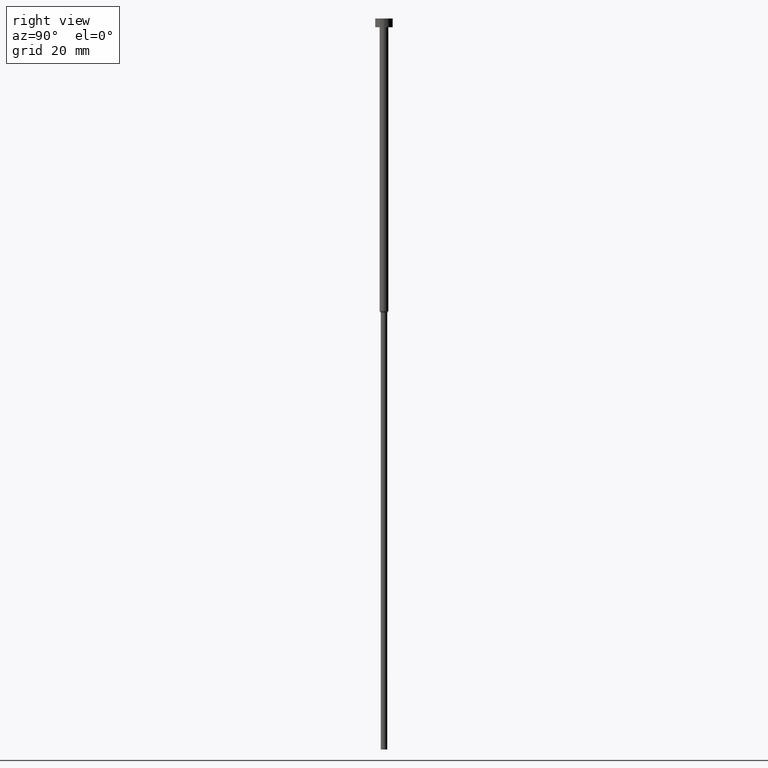
[diagram: clean part render]
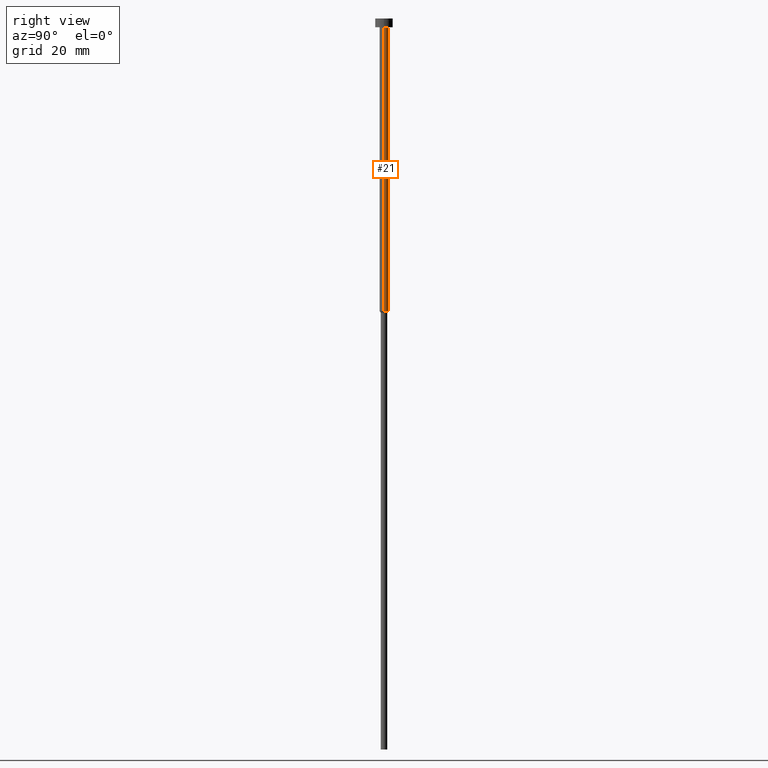
[diagram: same view with one face highlighted and labeled with its STEP entity id]
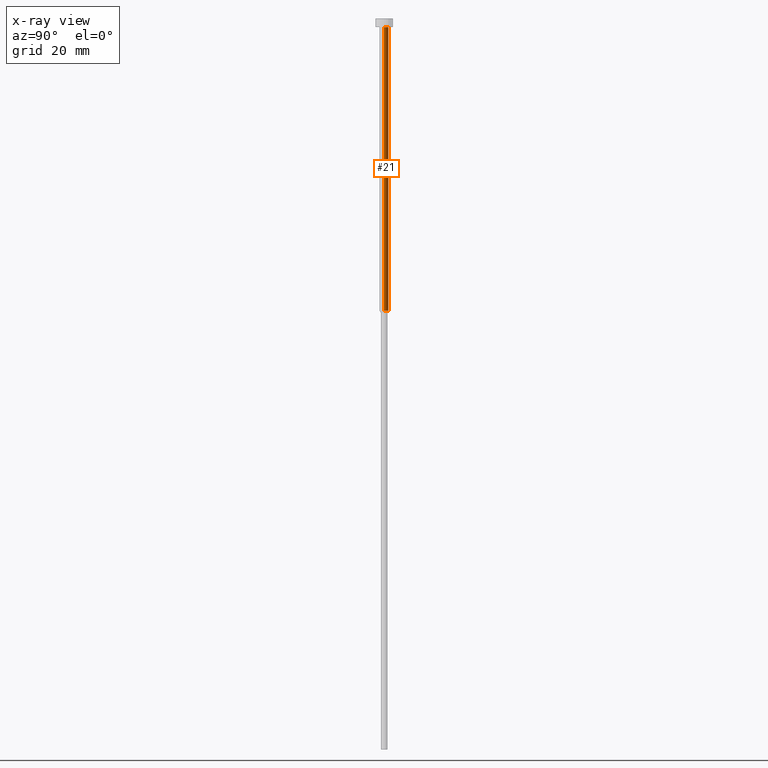
[diagram: x-ray of the same camera — body ghosted, the highlighted face saturated]
A machine part, right view. The second image highlights one B-rep face of the part: STEP entity #21.
The next image is the same camera in x-ray: the body ghosted, the highlighted face saturated — about 0% of this face is hidden behind the body in this view.
In plain terms, the highlighted cylindrical surface (edge-blend (fillet) strip) has radius 1.5 mm, axis along (-0, -0, 1).
Its self-contained STEP definition (entity closure, byte-faithful):
#19 = EDGE_LOOP ( 'NONE', ( #153, #314, #130, #289 ) ) ;
#20 = VERTEX_POINT ( 'NONE', #193 ) ;
#21 = ADVANCED_FACE ( 'NONE', ( #244 ), #101, .T. ) ;
#23 = DIRECTION ( 'NONE',  ( -0.000000000000000000, -0.000000000000000000, 1.000000000000000000 ) ) ;
#27 = DIRECTION ( 'NONE',  ( -0.000000000000000000, -0.000000000000000000, 1.000000000000000000 ) ) ;
#30 = DIRECTION ( 'NONE',  ( 1.000000000000000000, 0.000000000000000000, 0.000000000000000000 ) ) ;
#42 = CARTESIAN_POINT ( 'NONE',  ( -1.500000000000000000, 1.836970198721029934E-16, -3.000000000000000888 ) ) ;
#45 = DIRECTION ( 'NONE',  ( -0.000000000000000000, -0.000000000000000000, 1.000000000000000000 ) ) ;
#58 = VERTEX_POINT ( 'NONE', #75 ) ;
#70 = EDGE_CURVE ( 'NONE', #20, #127, #294, .T. ) ;
#75 = CARTESIAN_POINT ( 'NONE',  ( 1.500000000000000000, 0.000000000000000000, -100.0000000000000000 ) ) ;
#81 = CARTESIAN_POINT ( 'NONE',  ( 1.500000000000000000, 0.000000000000000000, 0.000000000000000000 ) ) ;
#86 = EDGE_CURVE ( 'NONE', #179, #127, #344, .T. ) ;
#88 = AXIS2_PLACEMENT_3D ( 'NONE', #305, #172, #30 ) ;
#101 = CYLINDRICAL_SURFACE ( 'NONE', #310, 1.500000000000000000 ) ;
#127 = VERTEX_POINT ( 'NONE', #42 ) ;
#130 = ORIENTED_EDGE ( 'NONE', *, *, #86, .F. ) ;
#141 = DIRECTION ( 'NONE',  ( -0.000000000000000000, -0.000000000000000000, 1.000000000000000000 ) ) ;
#153 = ORIENTED_EDGE ( 'NONE', *, *, #324, .T. ) ;
#167 = DIRECTION ( 'NONE',  ( 1.000000000000000000, 0.000000000000000000, 0.000000000000000000 ) ) ;
#172 = DIRECTION ( 'NONE',  ( -0.000000000000000000, -0.000000000000000000, 1.000000000000000000 ) ) ;
#179 = VERTEX_POINT ( 'NONE', #338 ) ;
#193 = CARTESIAN_POINT ( 'NONE',  ( -1.500000000000000000, 1.836970198721029934E-16, -100.0000000000000000 ) ) ;
#197 = LINE ( 'NONE', #81, #245 ) ;
#215 = CARTESIAN_POINT ( 'NONE',  ( 0.000000000000000000, 0.000000000000000000, 0.000000000000000000 ) ) ;
#216 = CARTESIAN_POINT ( 'NONE',  ( 0.000000000000000000, 0.000000000000000000, -3.000000000000000888 ) ) ;
#236 = EDGE_CURVE ( 'NONE', #58, #179, #197, .T. ) ;
#241 = AXIS2_PLACEMENT_3D ( 'NONE', #216, #27, #167 ) ;
#244 = FACE_OUTER_BOUND ( 'NONE', #19, .T. ) ;
#245 = VECTOR ( 'NONE', #141, 1000.000000000000000 ) ;
#251 = CIRCLE ( 'NONE', #88, 1.500000000000000000 ) ;
#265 = DIRECTION ( 'NONE',  ( 1.000000000000000000, 0.000000000000000000, 0.000000000000000000 ) ) ;
#270 = CARTESIAN_POINT ( 'NONE',  ( -1.500000000000000000, 1.836970198721029934E-16, 0.000000000000000000 ) ) ;
#289 = ORIENTED_EDGE ( 'NONE', *, *, #236, .F. ) ;
#290 = VECTOR ( 'NONE', #45, 1000.000000000000000 ) ;
#294 = LINE ( 'NONE', #270, #290 ) ;
#305 = CARTESIAN_POINT ( 'NONE',  ( 0.000000000000000000, 0.000000000000000000, -100.0000000000000000 ) ) ;
#310 = AXIS2_PLACEMENT_3D ( 'NONE', #215, #23, #265 ) ;
#314 = ORIENTED_EDGE ( 'NONE', *, *, #70, .T. ) ;
#324 = EDGE_CURVE ( 'NONE', #58, #20, #251, .T. ) ;
#338 = CARTESIAN_POINT ( 'NONE',  ( 1.500000000000000000, 0.000000000000000000, -3.000000000000000888 ) ) ;
#344 = CIRCLE ( 'NONE', #241, 1.500000000000000000 ) ;